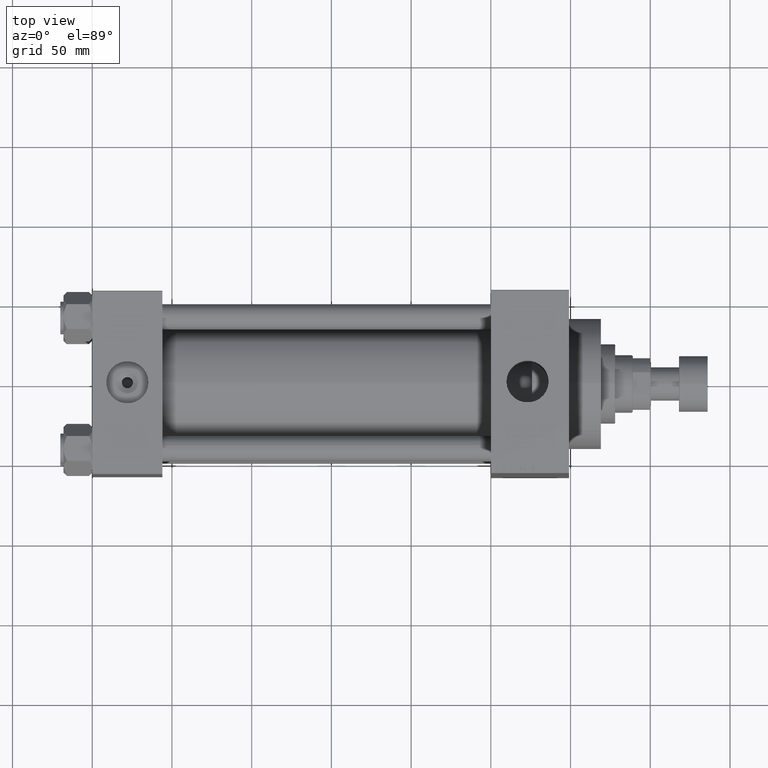
[diagram: clean part render]
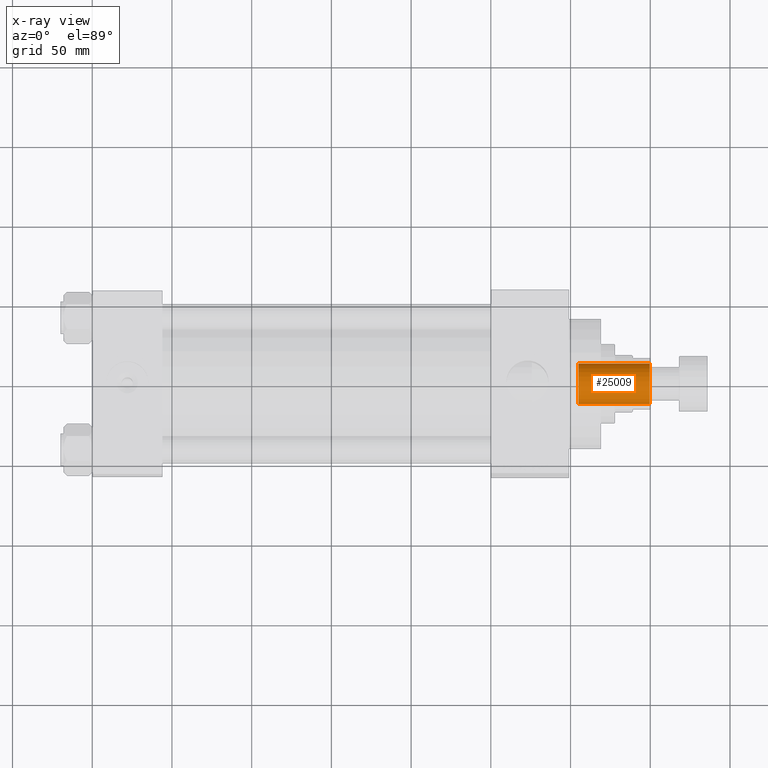
[diagram: x-ray — body ghosted, one internal face saturated and labeled with its STEP entity id]
A machine part, top view, then the same camera in x-ray: the body is ghosted and one INTERNAL B-rep face — a face not visible from any outside direction — is saturated and labeled: STEP entity #25009.
In plain terms, the highlighted cylindrical surface (edge-blend (fillet) strip) has radius 12.75 mm, axis along (1, 0, 0).
Its self-contained STEP definition (entity closure, byte-faithful):
#1331 = VECTOR ( 'NONE', #41337, 1000.000000000000000 ) ;
#1785 = EDGE_CURVE ( 'NONE', #3095, #34818, #25677, .T. ) ;
#1849 = LINE ( 'NONE', #17481, #47477 ) ;
#2811 = DIRECTION ( 'NONE',  ( -0.000000000000000000, -0.000000000000000000, 1.000000000000000000 ) ) ;
#3095 = VERTEX_POINT ( 'NONE', #42000 ) ;
#3593 = DIRECTION ( 'NONE',  ( -0.000000000000000000, -0.000000000000000000, 1.000000000000000000 ) ) ;
#7539 = CIRCLE ( 'NONE', #18460, 12.74999999999999112 ) ;
#8506 = EDGE_LOOP ( 'NONE', ( #10577, #39399, #30110, #24536 ) ) ;
#10577 = ORIENTED_EDGE ( 'NONE', *, *, #16825, .F. ) ;
#11274 = DIRECTION ( 'NONE',  ( -0.000000000000000000, -0.000000000000000000, 1.000000000000000000 ) ) ;
#11402 = CARTESIAN_POINT ( 'NONE',  ( 0.000000000000000000, 0.000000000000000000, 306.0000000000000000 ) ) ;
#12744 = AXIS2_PLACEMENT_3D ( 'NONE', #11402, #3593, #18738 ) ;
#16825 = EDGE_CURVE ( 'NONE', #3095, #22814, #47740, .T. ) ;
#17481 = CARTESIAN_POINT ( 'NONE',  ( 12.74999999999999112, 0.000000000000000000, 306.0000000000000000 ) ) ;
#18460 = AXIS2_PLACEMENT_3D ( 'NONE', #25686, #29598, #44516 ) ;
#18738 = DIRECTION ( 'NONE',  ( 1.000000000000000000, 0.000000000000000000, 0.000000000000000000 ) ) ;
#20528 = CARTESIAN_POINT ( 'NONE',  ( 12.74999999999999112, 0.000000000000000000, 305.6999999999999886 ) ) ;
#22515 = DIRECTION ( 'NONE',  ( 1.000000000000000000, 0.000000000000000000, 0.000000000000000000 ) ) ;
#22735 = AXIS2_PLACEMENT_3D ( 'NONE', #25711, #11274, #22515 ) ;
#22814 = VERTEX_POINT ( 'NONE', #23793 ) ;
#23793 = CARTESIAN_POINT ( 'NONE',  ( 12.74999999999998934, 0.000000000000000000, 261.0000000000000000 ) ) ;
#24536 = ORIENTED_EDGE ( 'NONE', *, *, #38747, .F. ) ;
#25009 = ADVANCED_FACE ( 'NONE', ( #48083 ), #33892, .F. ) ;
#25677 = LINE ( 'NONE', #37886, #1331 ) ;
#25686 = CARTESIAN_POINT ( 'NONE',  ( 0.000000000000000000, 0.000000000000000000, 305.6999999999999886 ) ) ;
#25711 = CARTESIAN_POINT ( 'NONE',  ( 0.000000000000000000, 0.000000000000000000, 261.0000000000000000 ) ) ;
#29598 = DIRECTION ( 'NONE',  ( 0.000000000000000000, 0.000000000000000000, 1.000000000000000000 ) ) ;
#30110 = ORIENTED_EDGE ( 'NONE', *, *, #36163, .T. ) ;
#33892 = CYLINDRICAL_SURFACE ( 'NONE', #12744, 12.74999999999999112 ) ;
#34818 = VERTEX_POINT ( 'NONE', #45826 ) ;
#36163 = EDGE_CURVE ( 'NONE', #34818, #38070, #7539, .T. ) ;
#37886 = CARTESIAN_POINT ( 'NONE',  ( -12.74999999999999112, 1.561424668912874125E-15, 306.0000000000000000 ) ) ;
#38070 = VERTEX_POINT ( 'NONE', #20528 ) ;
#38747 = EDGE_CURVE ( 'NONE', #22814, #38070, #1849, .T. ) ;
#39399 = ORIENTED_EDGE ( 'NONE', *, *, #1785, .T. ) ;
#41337 = DIRECTION ( 'NONE',  ( -0.000000000000000000, -0.000000000000000000, 1.000000000000000000 ) ) ;
#42000 = CARTESIAN_POINT ( 'NONE',  ( -12.74999999999998934, 1.561424668912873928E-15, 261.0000000000000000 ) ) ;
#44516 = DIRECTION ( 'NONE',  ( 1.000000000000000000, 0.000000000000000000, 0.000000000000000000 ) ) ;
#45826 = CARTESIAN_POINT ( 'NONE',  ( -12.74999999999999112, 1.561424668912874125E-15, 305.6999999999999886 ) ) ;
#47477 = VECTOR ( 'NONE', #2811, 1000.000000000000000 ) ;
#47740 = CIRCLE ( 'NONE', #22735, 12.74999999999998934 ) ;
#48083 = FACE_OUTER_BOUND ( 'NONE', #8506, .T. ) ;